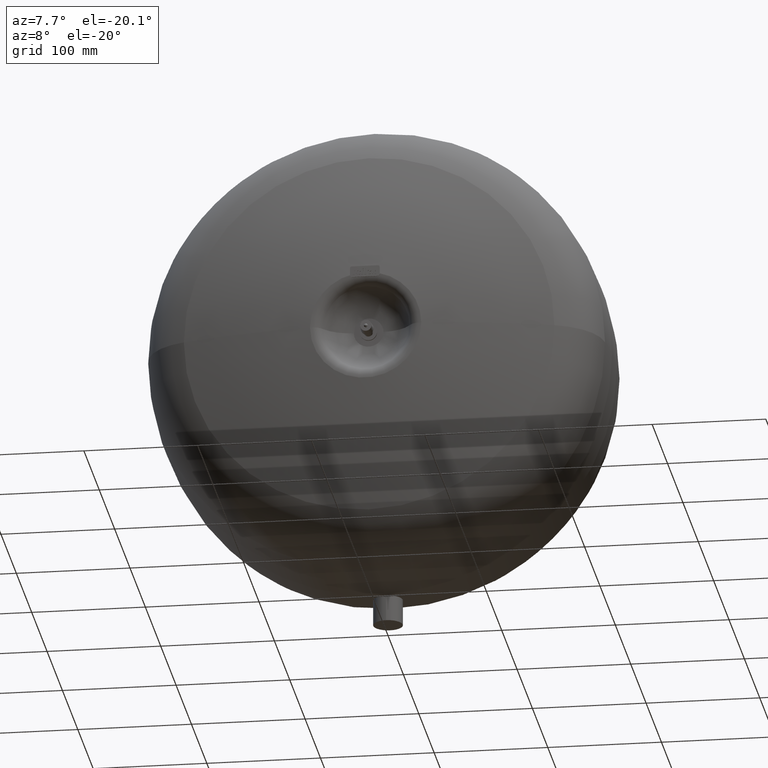
[diagram: clean part render]
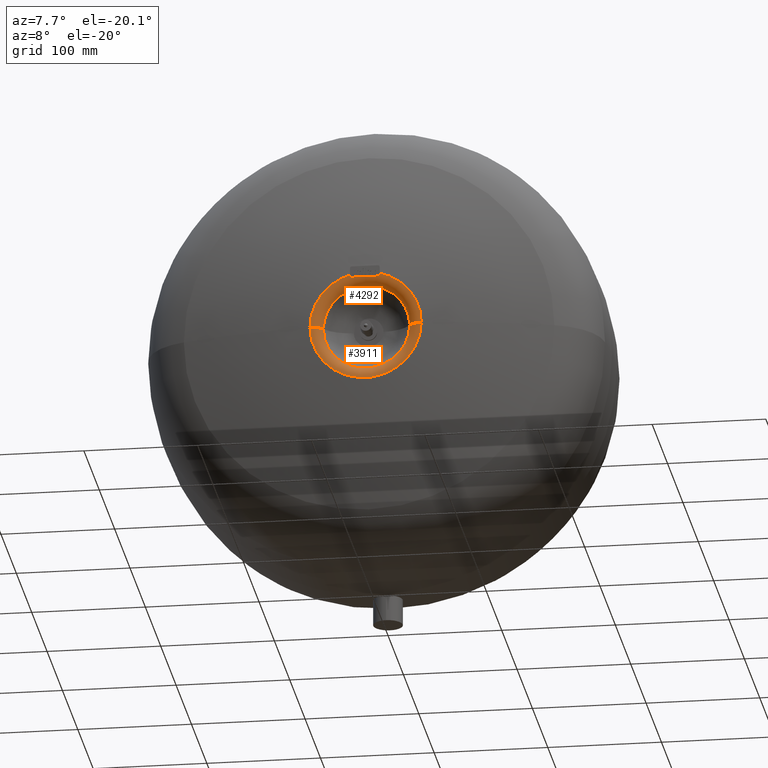
[diagram: same view with one multi-face feature highlighted, each face labeled with its STEP entity id]
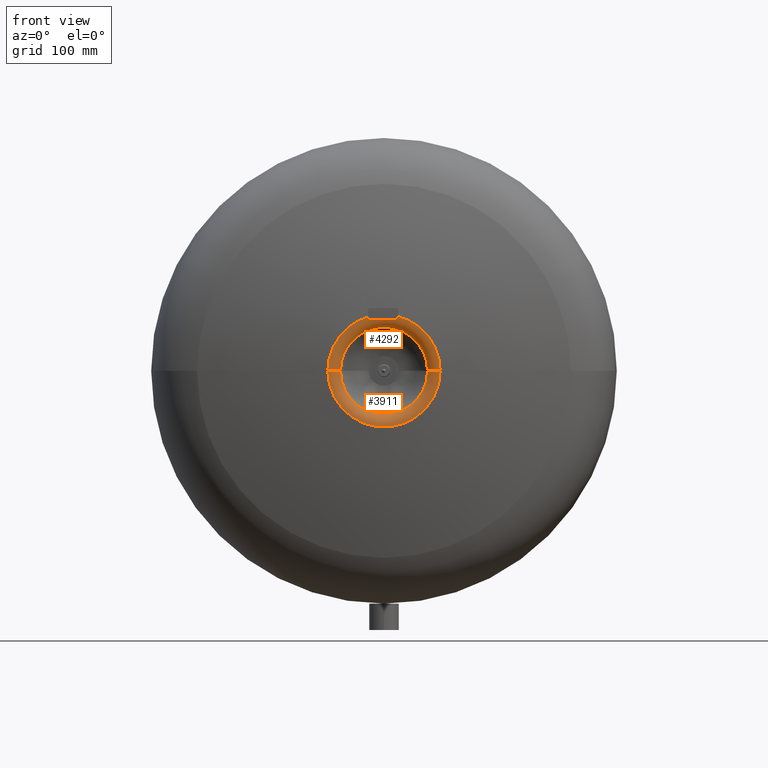
[diagram: same view with one multi-face feature highlighted, each face labeled with its STEP entity id]
A machine part, auxiliary view. The highlighted faces form ONE feature: a constant-radius fillet chain: 2 tangent blend faces with common blend radius 12 mm. The faces share edges in the B-rep.
A second angle (front view) of the same feature is appended — it is thin or edge-on in the first view.
Their STEP definitions:
[1] entity #3911 (Torus):
#3815=CARTESIAN_POINT('',(38.000000000000021,-139.99999999999989,226.00000000000006));
#3816=VERTEX_POINT('',#3815);
#3835=CARTESIAN_POINT('',(-38.00000000000005,-139.99999999999989,226.00000000000006));
#3836=VERTEX_POINT('',#3835);
#3872=CARTESIAN_POINT('',(-1.077928E-014,-134.01496289825428,226.00000000000006));
#3873=DIRECTION('',(-1.836910E-016,-1.0,0.0));
#3874=DIRECTION('',(1.0,0.0,0.0));
#3875=AXIS2_PLACEMENT_3D('',#3872,#3873,#3874);
#3876=TOROIDAL_SURFACE('',#3875,48.400929328224933,12.0);
#3877=CARTESIAN_POINT('',(49.000000000000028,-145.99999999999994,226.00000000000006));
#3878=VERTEX_POINT('',#3877);
#3879=CARTESIAN_POINT('',(48.400929328224919,-134.01496289825428,226.00000000000006));
#3880=DIRECTION('',(0.0,0.0,1.0));
#3881=DIRECTION('',(1.0,0.0,0.0));
#3882=AXIS2_PLACEMENT_3D('',#3879,#3880,#3881);
#3883=CIRCLE('',#3882,12.0);
#3884=EDGE_CURVE('',#3816,#3878,#3883,.T.);
#3885=ORIENTED_EDGE('',*,*,#3884,.F.);
#3886=CARTESIAN_POINT('',(-1.187868E-014,-139.99999999999989,226.00000000000006));
#3887=DIRECTION('',(0.0,-1.0,0.0));
#3888=DIRECTION('',(0.0,0.0,1.0));
#3889=AXIS2_PLACEMENT_3D('',#3886,#3887,#3888);
#3890=CIRCLE('',#3889,38.000000000000036);
#3891=EDGE_CURVE('',#3836,#3816,#3890,.T.);
#3892=ORIENTED_EDGE('',*,*,#3891,.F.);
#3893=CARTESIAN_POINT('',(-49.000000000000057,-145.99999999999994,226.00000000000006));
#3894=VERTEX_POINT('',#3893);
#3895=CARTESIAN_POINT('',(-48.400929328224947,-134.01496289825428,226.00000000000006));
#3896=DIRECTION('',(0.0,0.0,-1.0));
#3897=DIRECTION('',(-1.0,0.0,0.0));
#3898=AXIS2_PLACEMENT_3D('',#3895,#3896,#3897);
#3899=CIRCLE('',#3898,12.0);
#3900=EDGE_CURVE('',#3836,#3894,#3899,.T.);
#3901=ORIENTED_EDGE('',*,*,#3900,.T.);
#3902=CARTESIAN_POINT('',(-1.298083E-014,-145.99999999999991,226.00000000000006));
#3903=DIRECTION('',(0.0,-1.0,0.0));
#3904=DIRECTION('',(0.0,0.0,1.0));
#3905=AXIS2_PLACEMENT_3D('',#3902,#3903,#3904);
#3906=CIRCLE('',#3905,49.000000000000043);
#3907=EDGE_CURVE('',#3894,#3878,#3906,.T.);
#3908=ORIENTED_EDGE('',*,*,#3907,.T.);
#3909=EDGE_LOOP('',(#3885,#3892,#3901,#3908));
#3910=FACE_OUTER_BOUND('',#3909,.T.);
#3911=ADVANCED_FACE('',(#3910),#3876,.T.);
[2] entity #4292 (Torus):
#3815=CARTESIAN_POINT('',(38.000000000000021,-139.99999999999989,226.00000000000006));
#3816=VERTEX_POINT('',#3815);
#3826=CARTESIAN_POINT('',(-9.551930E-015,-139.99999999999989,264.00000000000011));
#3827=VERTEX_POINT('',#3826);
#3828=CARTESIAN_POINT('',(-1.187868E-014,-139.99999999999989,226.00000000000006));
#3829=DIRECTION('',(0.0,-1.0,0.0));
#3830=DIRECTION('',(0.0,0.0,1.0));
#3831=AXIS2_PLACEMENT_3D('',#3828,#3829,#3830);
#3832=CIRCLE('',#3831,38.000000000000036);
#3833=EDGE_CURVE('',#3816,#3827,#3832,.T.);
#3835=CARTESIAN_POINT('',(-38.00000000000005,-139.99999999999989,226.00000000000006));
#3836=VERTEX_POINT('',#3835);
#3837=CARTESIAN_POINT('',(-1.187868E-014,-139.99999999999989,226.00000000000006));
#3838=DIRECTION('',(0.0,-1.0,0.0));
#3839=DIRECTION('',(0.0,0.0,1.0));
#3840=AXIS2_PLACEMENT_3D('',#3837,#3838,#3839);
#3841=CIRCLE('',#3840,38.000000000000036);
#3842=EDGE_CURVE('',#3827,#3836,#3841,.T.);
#3877=CARTESIAN_POINT('',(49.000000000000028,-145.99999999999994,226.00000000000006));
#3878=VERTEX_POINT('',#3877);
#3879=CARTESIAN_POINT('',(48.400929328224919,-134.01496289825428,226.00000000000006));
#3880=DIRECTION('',(0.0,0.0,1.0));
#3881=DIRECTION('',(1.0,0.0,0.0));
#3882=AXIS2_PLACEMENT_3D('',#3879,#3880,#3881);
#3883=CIRCLE('',#3882,12.0);
#3884=EDGE_CURVE('',#3816,#3878,#3883,.T.);
#3893=CARTESIAN_POINT('',(-49.000000000000057,-145.99999999999994,226.00000000000006));
#3894=VERTEX_POINT('',#3893);
#3895=CARTESIAN_POINT('',(-48.400929328224947,-134.01496289825428,226.00000000000006));
#3896=DIRECTION('',(0.0,0.0,-1.0));
#3897=DIRECTION('',(-1.0,0.0,0.0));
#3898=AXIS2_PLACEMENT_3D('',#3895,#3896,#3897);
#3899=CIRCLE('',#3898,12.0);
#3900=EDGE_CURVE('',#3836,#3894,#3899,.T.);
#4260=CARTESIAN_POINT('',(-9.980542E-015,-145.99999999999991,275.00000000000011));
#4261=VERTEX_POINT('',#4260);
#4262=CARTESIAN_POINT('',(-1.298083E-014,-145.99999999999991,226.00000000000006));
#4263=DIRECTION('',(0.0,-1.0,0.0));
#4264=DIRECTION('',(0.0,0.0,1.0));
#4265=AXIS2_PLACEMENT_3D('',#4262,#4263,#4264);
#4266=CIRCLE('',#4265,49.000000000000043);
#4267=EDGE_CURVE('',#4261,#3894,#4266,.T.);
#4269=CARTESIAN_POINT('',(-1.298083E-014,-145.99999999999991,226.00000000000006));
#4270=DIRECTION('',(0.0,-1.0,0.0));
#4271=DIRECTION('',(0.0,0.0,1.0));
#4272=AXIS2_PLACEMENT_3D('',#4269,#4270,#4271);
#4273=CIRCLE('',#4272,49.000000000000043);
#4274=EDGE_CURVE('',#3878,#4261,#4273,.T.);
#4279=CARTESIAN_POINT('',(-1.077928E-014,-134.01496289825428,226.00000000000006));
#4280=DIRECTION('',(-1.836910E-016,-1.0,0.0));
#4281=DIRECTION('',(1.0,0.0,0.0));
#4282=AXIS2_PLACEMENT_3D('',#4279,#4280,#4281);
#4283=TOROIDAL_SURFACE('',#4282,48.400929328224933,12.0);
#4284=ORIENTED_EDGE('',*,*,#3884,.T.);
#4285=ORIENTED_EDGE('',*,*,#4274,.T.);
#4286=ORIENTED_EDGE('',*,*,#4267,.T.);
#4287=ORIENTED_EDGE('',*,*,#3900,.F.);
#4288=ORIENTED_EDGE('',*,*,#3842,.F.);
#4289=ORIENTED_EDGE('',*,*,#3833,.F.);
#4290=EDGE_LOOP('',(#4284,#4285,#4286,#4287,#4288,#4289));
#4291=FACE_OUTER_BOUND('',#4290,.T.);
#4292=ADVANCED_FACE('',(#4291),#4283,.T.);